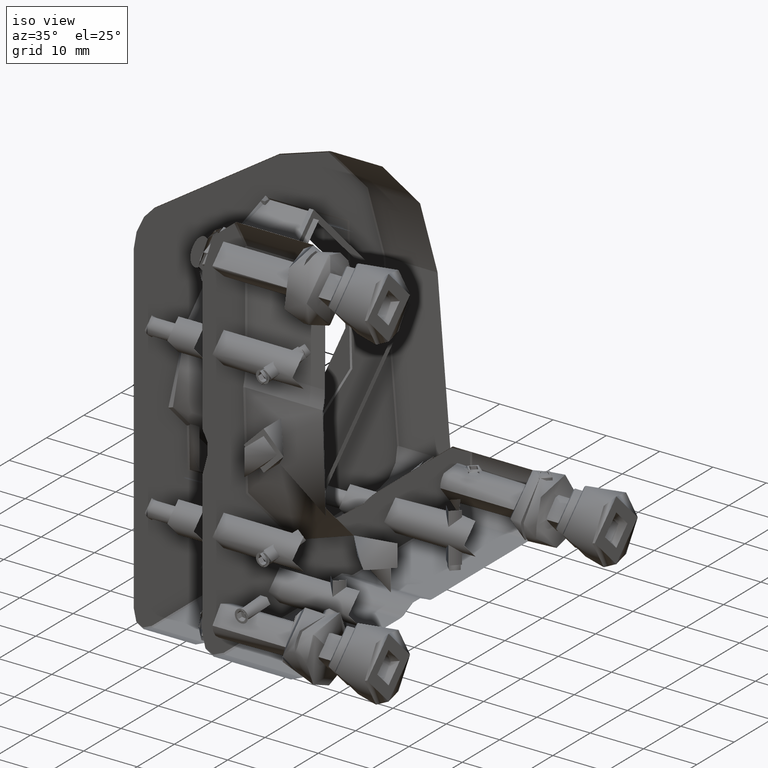
[diagram: clean part render]
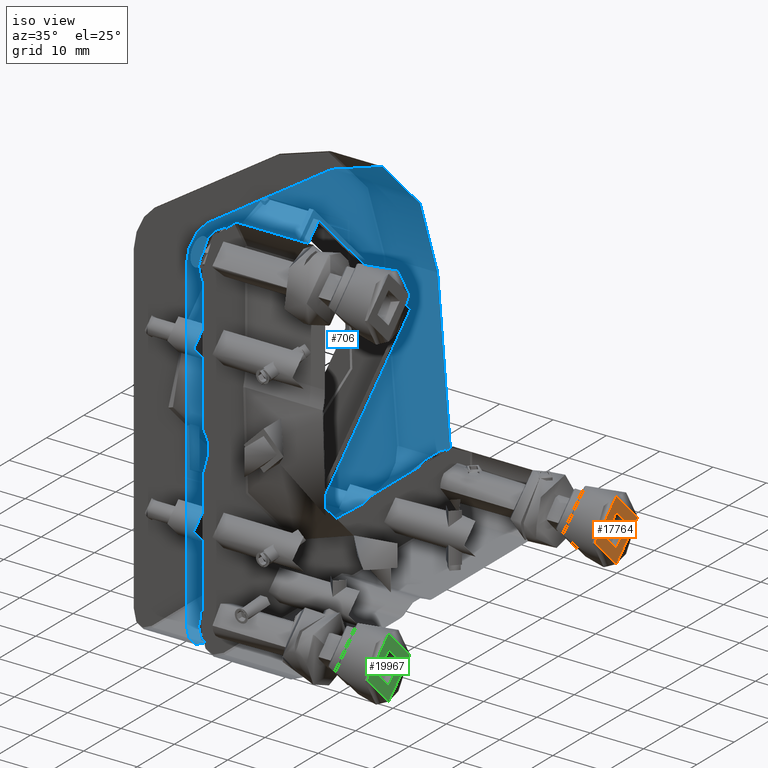
[diagram: same view with three faces highlighted in distinct colors, each labeled with its STEP entity id]
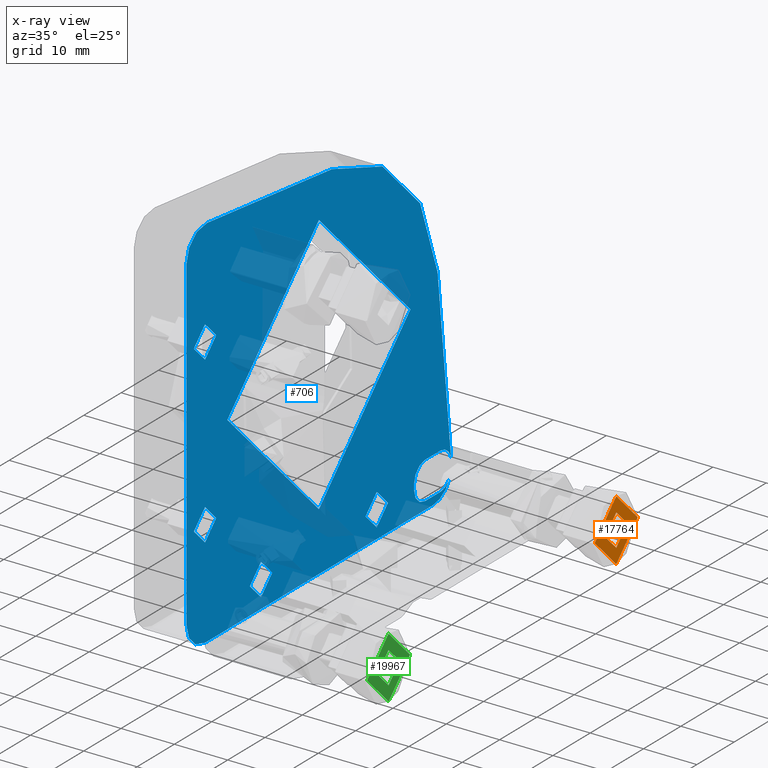
[diagram: x-ray of the same camera — body ghosted, the three highlighted faces saturated]
A machine part, iso view with three faces highlighted in distinct colors.
The next image is the same camera in x-ray (body ghosted, the three faces saturated) — at least one of them is partly hidden behind the body in this view.
Their STEP definitions:

[orange] entity #17764 — the highlighted planar face has unit normal (-1, -0, 0).
#4325 = AXIS2_PLACEMENT_3D ( 'NONE', #16149, #19496, #9667 ) ;
#5531 = FACE_OUTER_BOUND ( 'NONE', #8339, .T. ) ;
#5661 = ORIENTED_EDGE ( 'NONE', *, *, #12207, .F. ) ;
#6388 = CIRCLE ( 'NONE', #16733, 3.000000000013377299 ) ;
#8339 = EDGE_LOOP ( 'NONE', ( #19007 ) ) ;
#9068 = AXIS2_PLACEMENT_3D ( 'NONE', #11904, #18292, #16719 ) ;
#9209 = DIRECTION ( 'NONE',  ( 0.000000000000000000, 0.000000000000000000, -1.000000000000000000 ) ) ;
#9667 = DIRECTION ( 'NONE',  ( 1.206764157183603817E-15, -1.000000000000000000, 0.000000000000000000 ) ) ;
#9931 = EDGE_LOOP ( 'NONE', ( #5661 ) ) ;
#10150 = EDGE_CURVE ( 'NONE', #14119, #14119, #13319, .T. ) ;
#10332 = FACE_BOUND ( 'NONE', #9931, .T. ) ;
#11695 = VERTEX_POINT ( 'NONE', #16512 ) ;
#11904 = CARTESIAN_POINT ( 'NONE',  ( 30.45623492657797016, 29.18292862304677016, 21.50000000000000000 ) ) ;
#12207 = EDGE_CURVE ( 'NONE', #11695, #11695, #6388, .T. ) ;
#13319 = CIRCLE ( 'NONE', #4325, 5.750000000084114937 ) ;
#14119 = VERTEX_POINT ( 'NONE', #19241 ) ;
#15480 = CARTESIAN_POINT ( 'NONE',  ( 30.45623492653248832, 29.18292862304677016, 21.50000000000000000 ) ) ;
#16149 = CARTESIAN_POINT ( 'NONE',  ( 30.45623492653249187, 29.18292862304677371, 21.50000000000000000 ) ) ;
#16512 = CARTESIAN_POINT ( 'NONE',  ( 30.45623492653248832, 29.18292862304677016, 18.49999999998662403 ) ) ;
#16719 = DIRECTION ( 'NONE',  ( 2.921060881242300637E-16, -1.000000000000000000, 0.000000000000000000 ) ) ;
#16733 = AXIS2_PLACEMENT_3D ( 'NONE', #15480, #20084, #9209 ) ;
#17764 = ADVANCED_FACE ( 'NONE', ( #5531, #10332 ), #18602, .F. ) ;
#18292 = DIRECTION ( 'NONE',  ( -1.000000000000000000, -2.921060881242300637E-16, 2.046973701652683154E-16 ) ) ;
#18602 = PLANE ( 'NONE',  #9068 ) ;
#19007 = ORIENTED_EDGE ( 'NONE', *, *, #10150, .F. ) ;
#19241 = CARTESIAN_POINT ( 'NONE',  ( 30.45623492653249897, 23.43292862296265966, 21.50000000000000000 ) ) ;
#19496 = DIRECTION ( 'NONE',  ( -1.000000000000000000, -9.081961124779698324E-16, 1.052944214962372728E-16 ) ) ;
#20084 = DIRECTION ( 'NONE',  ( 1.000000000000000000, -0.000000000000000000, 0.000000000000000000 ) ) ;

[blue] entity #706 — the highlighted planar face has unit normal (-1, 0, 0).
#19 = CARTESIAN_POINT ( 'NONE',  ( -3.975619322914200282, -30.82442902997508938, 19.74187420144115279 ) ) ;
#41 = CARTESIAN_POINT ( 'NONE',  ( -3.975619322914199394, -32.77454530190901494, 80.13649982530291993 ) ) ;
#63 = ORIENTED_EDGE ( 'NONE', *, *, #950, .T. ) ;
#147 = CARTESIAN_POINT ( 'NONE',  ( -3.975619322914200282, -34.36710506261010778, 82.33804233218590696 ) ) ;
#157 = CARTESIAN_POINT ( 'NONE',  ( -3.975619322914199394, -1.317071376953247608, 52.00000000000001421 ) ) ;
#222 = CARTESIAN_POINT ( 'NONE',  ( -3.975619322914199394, 30.49290967648063955, 55.48211220097487484 ) ) ;
#227 = CARTESIAN_POINT ( 'NONE',  ( -3.975619322914200282, -31.28986181036940550, 19.56874895520969559 ) ) ;
#291 = ORIENTED_EDGE ( 'NONE', *, *, #5437, .T. ) ;
#332 = EDGE_CURVE ( 'NONE', #15894, #20489, #14537, .T. ) ;
#342 = CIRCLE ( 'NONE', #1336, 5.000000000000000888 ) ;
#589 = DIRECTION ( 'NONE',  ( -0.000000000000000000, -1.000000000000000000, 0.000000000000000000 ) ) ;
#706 = ADVANCED_FACE ( 'NONE', ( #13417, #16766, #3813, #16868, #5479, #14998, #16567, #8824 ), #15101, .T. ) ;
#803 = CARTESIAN_POINT ( 'NONE',  ( -3.975619322914200282, -33.45763827963047987, 22.65886946835118820 ) ) ;
#808 = CARTESIAN_POINT ( 'NONE',  ( -3.975619322914198506, -30.91618306170578023, 80.11435297104817721 ) ) ;
#840 = B_SPLINE_CURVE_WITH_KNOTS ( 'NONE', 3,
 ( #18564, #10403, #19825, #13849, #15118, #15313, #904, #9047, #13636, #17095, #7361, #803, #5497, #10714, #8842, #13741, #20235, #15218, #7155, #11869, #18360, #20136, #12277, #19925, #4138, #5704, #16684, #5804, #12177, #15424, #16786, #4239, #18672, #18254, #4346, #2781, #5598, #15018 ),
 .UNSPECIFIED., .F., .F.,
 ( 4, 1, 1, 1, 2, 2, 2, 1, 1, 1, 2, 2, 2, 1, 1, 1, 2, 2, 2, 1, 1, 1, 2, 2, 4 ),
 ( 0.000000000000000000, 0.06250000000000618949, 0.09375000000000928424, 0.1093750000000125039, 0.1171875000000138223, 0.1250000000000151545, 0.2500000000000386358, 0.3125000000000498490, 0.3437500000000538458, 0.3593750000000558997, 0.3671875000000555112, 0.3750000000000551226, 0.5000000000000462963, 0.5625000000000419664, 0.5937500000000393019, 0.6093750000000384137, 0.6171875000000371925, 0.6250000000000358602, 0.7500000000000232037, 0.8125000000000168754, 0.8437500000000146549, 0.8593750000000121014, 0.8671875000000108802, 0.8750000000000095479, 1.000000000000000000 ),
 .UNSPECIFIED. ) ;
#904 = CARTESIAN_POINT ( 'NONE',  ( -3.975619322914199394, -32.52364578398503170, 23.37109570898181232 ) ) ;
#950 = EDGE_CURVE ( 'NONE', #3335, #5555, #11613, .T. ) ;
#1044 = CIRCLE ( 'NONE', #17725, 3.000000000000002665 ) ;
#1100 = EDGE_CURVE ( 'NONE', #12466, #8326, #11094, .T. ) ;
#1112 = CARTESIAN_POINT ( 'NONE',  ( -3.975619322914199394, -29.26713874826699069, 82.17608466436740855 ) ) ;
#1157 = CARTESIAN_POINT ( 'NONE',  ( -3.975619322886814189, 31.18292862304676660, 17.99999999999955946 ) ) ;
#1211 = VERTEX_POINT ( 'NONE', #9537 ) ;
#1219 = EDGE_CURVE ( 'NONE', #11313, #5381, #16406, .T. ) ;
#1243 = EDGE_CURVE ( 'NONE', #2385, #5682, #13607, .T. ) ;
#1291 = ORIENTED_EDGE ( 'NONE', *, *, #17188, .T. ) ;
#1318 = CARTESIAN_POINT ( 'NONE',  ( -3.975619322914199394, -29.26703769129635546, 82.66195766781629573 ) ) ;
#1336 = AXIS2_PLACEMENT_3D ( 'NONE', #18718, #4606, #6059 ) ;
#1404 = ORIENTED_EDGE ( 'NONE', *, *, #19068, .T. ) ;
#1511 = CARTESIAN_POINT ( 'NONE',  ( -3.975619322914200282, -33.74457534295112282, 84.17879313774882633 ) ) ;
#1580 = CARTESIAN_POINT ( 'NONE',  ( -3.975619322914199394, -36.81707137695322274, 21.50000000000000000 ) ) ;
#1583 = CIRCLE ( 'NONE', #4909, 3.000000000000901057 ) ;
#1592 = CARTESIAN_POINT ( 'NONE',  ( -3.975619322914200282, -29.96334152861956568, 20.74905311511238182 ) ) ;
#1595 = EDGE_CURVE ( 'NONE', #13172, #13172, #2568, .T. ) ;
#1599 = VECTOR ( 'NONE', #17298, 1000.000000000000000 ) ;
#1697 = CARTESIAN_POINT ( 'NONE',  ( -3.975619322914199394, -29.83456536784859026, 21.81425269692395119 ) ) ;
#1720 = CARTESIAN_POINT ( 'NONE',  ( -3.975619322914199394, -33.49586451469832582, 80.57249603400187254 ) ) ;
#1820 = CARTESIAN_POINT ( 'NONE',  ( -3.975619322914199394, -30.73723791231333990, 84.81092171771460642 ) ) ;
#1902 = CARTESIAN_POINT ( 'NONE',  ( -3.975619322914199394, -29.97040715913649933, 20.73179999930282946 ) ) ;
#1960 = CARTESIAN_POINT ( 'NONE',  ( -3.975619322900506347, 24.18292862304949153, 22.00000000000000711 ) ) ;
#2080 = AXIS2_PLACEMENT_3D ( 'NONE', #19790, #2819, #18607 ) ;
#2105 = CARTESIAN_POINT ( 'NONE',  ( -3.975619322914199394, -31.81707137695323340, 23.50000000000000711 ) ) ;
#2170 = CARTESIAN_POINT ( 'NONE',  ( -3.975619322914199394, -31.81707137695323340, 79.95000000000000284 ) ) ;
#2205 = CARTESIAN_POINT ( 'NONE',  ( -3.975619322914199394, -30.05894557839022241, 22.49264234697042752 ) ) ;
#2273 = CARTESIAN_POINT ( 'NONE',  ( -3.975619322914200282, -29.47972181617375043, 81.48021445982587352 ) ) ;
#2309 = CARTESIAN_POINT ( 'NONE',  ( -3.975619322914199394, -31.01722462457866314, 23.33320560037774882 ) ) ;
#2331 = AXIS2_PLACEMENT_3D ( 'NONE', #20549, #10914, #7465 ) ;
#2340 = AXIS2_PLACEMENT_3D ( 'NONE', #18032, #14788, #18137 ) ;
#2343 = DIRECTION ( 'NONE',  ( 0.000000000000000000, 0.000000000000000000, 1.000000000000000000 ) ) ;
#2369 = CARTESIAN_POINT ( 'NONE',  ( -3.975619322914199394, -31.81707137695323340, 23.50000000000000711 ) ) ;
#2375 = CARTESIAN_POINT ( 'NONE',  ( -3.975619322914199394, -29.57269417786568511, 81.28329510614391040 ) ) ;
#2385 = VERTEX_POINT ( 'NONE', #5274 ) ;
#2424 = EDGE_CURVE ( 'NONE', #8326, #5806, #15110, .T. ) ;
#2498 = EDGE_CURVE ( 'NONE', #15967, #11313, #15104, .T. ) ;
#2568 = CIRCLE ( 'NONE', #12243, 3.000000000000002665 ) ;
#2709 = ORIENTED_EDGE ( 'NONE', *, *, #1243, .T. ) ;
#2781 = CARTESIAN_POINT ( 'NONE',  ( -3.975619322914198506, -32.31697087514267253, 19.54680779929170598 ) ) ;
#2819 = DIRECTION ( 'NONE',  ( 1.000000000000000000, 0.000000000000000000, 0.000000000000000000 ) ) ;
#3093 = CARTESIAN_POINT ( 'NONE',  ( -3.975619322886814189, 31.18292862304676660, 21.00000000000000711 ) ) ;
#3104 = AXIS2_PLACEMENT_3D ( 'NONE', #5584, #13520, #10389 ) ;
#3183 = CARTESIAN_POINT ( 'NONE',  ( -3.975619322914199394, -34.34475034781640090, 82.09924389265243860 ) ) ;
#3199 = ORIENTED_EDGE ( 'NONE', *, *, #332, .T. ) ;
#3262 = CARTESIAN_POINT ( 'NONE',  ( -3.975619322914200282, -31.18489337898517633, 19.60202637501866718 ) ) ;
#3284 = CARTESIAN_POINT ( 'NONE',  ( -3.975619322914200282, -31.97911418336582656, 85.05000000000001137 ) ) ;
#3335 = VERTEX_POINT ( 'NONE', #15235 ) ;
#3377 = CARTESIAN_POINT ( 'NONE',  ( -3.975619322914200282, -29.39712921452097660, 83.30598056108280502 ) ) ;
#3379 = CARTESIAN_POINT ( 'NONE',  ( -3.975619322914198506, -32.14151373404018841, 79.95000000000000284 ) ) ;
#3463 = CARTESIAN_POINT ( 'NONE',  ( -3.975619322914199394, -30.17650447427507743, 20.34113053165442153 ) ) ;
#3480 = CARTESIAN_POINT ( 'NONE',  ( -3.975619322914201170, -32.62311712227380411, 84.91991637185124375 ) ) ;
#3683 = DIRECTION ( 'NONE',  ( 0.000000000000000000, 0.000000000000000000, -1.000000000000000000 ) ) ;
#3813 = FACE_BOUND ( 'NONE', #18501, .T. ) ;
#3837 = VERTEX_POINT ( 'NONE', #11307 ) ;
#3890 = ORIENTED_EDGE ( 'NONE', *, *, #1100, .T. ) ;
#4086 = VERTEX_POINT ( 'NONE', #20397 ) ;
#4138 = CARTESIAN_POINT ( 'NONE',  ( -3.975619322914199394, -33.68817524195780067, 20.79344621021136419 ) ) ;
#4153 = EDGE_LOOP ( 'NONE', ( #15542 ) ) ;
#4219 = VERTEX_POINT ( 'NONE', #1157 ) ;
#4239 = CARTESIAN_POINT ( 'NONE',  ( -3.975619322914197618, -32.66402442694658959, 19.68752855891180786 ) ) ;
#4244 = CARTESIAN_POINT ( 'NONE',  ( -3.975619322900506347, 27.18292862304677016, 17.99999999998631850 ) ) ;
#4346 = CARTESIAN_POINT ( 'NONE',  ( -3.975619322914199394, -32.56802891613537554, 19.64627437278659627 ) ) ;
#4420 = CARTESIAN_POINT ( 'NONE',  ( -3.975619322914199394, -36.81707137695322984, 82.50000000000000000 ) ) ;
#4565 = CARTESIAN_POINT ( 'NONE',  ( -3.975619322914199394, -31.27299134555093474, 87.47030953959902888 ) ) ;
#4566 = ORIENTED_EDGE ( 'NONE', *, *, #2424, .T. ) ;
#4583 = CARTESIAN_POINT ( 'NONE',  ( -3.975619322914199394, 14.18292862304677016, 18.50000000000000355 ) ) ;
#4591 = AXIS2_PLACEMENT_3D ( 'NONE', #16659, #13410, #2343 ) ;
#4606 = DIRECTION ( 'NONE',  ( -1.000000000000000000, 0.000000000000000000, 0.000000000000000000 ) ) ;
#4746 = CARTESIAN_POINT ( 'NONE',  ( -3.975619322914201170, -34.15442093773154397, 83.51978554017843237 ) ) ;
#4841 = CARTESIAN_POINT ( 'NONE',  ( -3.975619322914198506, -29.41742133412124360, 83.36296456765475682 ) ) ;
#4845 = CARTESIAN_POINT ( 'NONE',  ( -3.975619322914198506, -34.20272656415004775, 81.59913230426003850 ) ) ;
#4896 = LINE ( 'NONE', #7729, #11420 ) ;
#4909 = AXIS2_PLACEMENT_3D ( 'NONE', #3093, #6114, #10917 ) ;
#4921 = CARTESIAN_POINT ( 'NONE',  ( -3.975619322914200282, -29.93498956726018534, 22.17681761886219149 ) ) ;
#4975 = CARTESIAN_POINT ( 'NONE',  ( -3.975619322900506347, 31.18292862304677371, 24.99999999999727862 ) ) ;
#5027 = EDGE_CURVE ( 'NONE', #4219, #17913, #1583, .T. ) ;
#5047 = CARTESIAN_POINT ( 'NONE',  ( -3.975619322914199394, -34.36700400563945834, 82.82391533562824293 ) ) ;
#5064 = EDGE_CURVE ( 'NONE', #4086, #4086, #17263, .T. ) ;
#5147 = CARTESIAN_POINT ( 'NONE',  ( -3.975619322914199394, -34.21672141978520898, 81.63703543234622373 ) ) ;
#5227 = CARTESIAN_POINT ( 'NONE',  ( -3.975619322914199394, -31.04887137625543048, 23.34666421781653511 ) ) ;
#5274 = CARTESIAN_POINT ( 'NONE',  ( -3.975619322914199394, -31.81707137695323340, 19.49999999999999645 ) ) ;
#5381 = VERTEX_POINT ( 'NONE', #1960 ) ;
#5403 = CARTESIAN_POINT ( 'NONE',  ( -3.975619322914198506, -29.88956741095283220, 80.82120686226055284 ) ) ;
#5437 = EDGE_CURVE ( 'NONE', #17913, #20220, #14927, .T. ) ;
#5479 = FACE_BOUND ( 'NONE', #9550, .T. ) ;
#5497 = CARTESIAN_POINT ( 'NONE',  ( -3.975619322914198506, -33.57733948112283429, 22.45432093515377403 ) ) ;
#5501 = CARTESIAN_POINT ( 'NONE',  ( -3.975619322914199394, -31.41616627703531961, 79.97237997903634721 ) ) ;
#5555 = VERTEX_POINT ( 'NONE', #18157 ) ;
#5584 = CARTESIAN_POINT ( 'NONE',  ( -3.975619322914199394, -31.81707137695323340, 82.50000000000000000 ) ) ;
#5598 = CARTESIAN_POINT ( 'NONE',  ( -3.975619322914197618, -32.07157440210141175, 19.49999999999998934 ) ) ;
#5666 = EDGE_CURVE ( 'NONE', #5682, #2385, #840, .T. ) ;
#5682 = VERTEX_POINT ( 'NONE', #2369 ) ;
#5704 = CARTESIAN_POINT ( 'NONE',  ( -3.975619322914199394, -33.68298865430074329, 20.77983888886670272 ) ) ;
#5804 = CARTESIAN_POINT ( 'NONE',  ( -3.975619322914198506, -33.42624616917156999, 20.28085267800684122 ) ) ;
#5806 = VERTEX_POINT ( 'NONE', #17061 ) ;
#5905 = CARTESIAN_POINT ( 'NONE',  ( -3.975619322914200282, -30.83762639542185724, 84.85450340363554744 ) ) ;
#5932 = EDGE_LOOP ( 'NONE', ( #20355 ) ) ;
#6035 = VERTEX_POINT ( 'NONE', #8870 ) ;
#6059 = DIRECTION ( 'NONE',  ( 0.000000000000000000, 0.000000000000000000, 1.000000000000000000 ) ) ;
#6076 = EDGE_CURVE ( 'NONE', #20489, #15967, #17611, .T. ) ;
#6114 = DIRECTION ( 'NONE',  ( 1.000000000000000000, 0.000000000000000000, 0.000000000000000000 ) ) ;
#6121 = CARTESIAN_POINT ( 'NONE',  ( -3.975619322914199394, -29.32681883742971607, 81.86250669773335176 ) ) ;
#6179 = CARTESIAN_POINT ( 'NONE',  ( -3.975619322914199394, -29.86394671416922719, 20.99993003309819528 ) ) ;
#6196 = EDGE_LOOP ( 'NONE', ( #63, #1291 ) ) ;
#6300 = CARTESIAN_POINT ( 'NONE',  ( -3.975619322914198506, -33.90884133289068814, 83.97748617421078166 ) ) ;
#6355 = ORIENTED_EDGE ( 'NONE', *, *, #6076, .T. ) ;
#6402 = CARTESIAN_POINT ( 'NONE',  ( -3.975619322914200282, -34.23701353938550085, 81.69401943891892870 ) ) ;
#6504 = CARTESIAN_POINT ( 'NONE',  ( -3.975619322914198506, -29.43141618975641549, 83.40086769574045888 ) ) ;
#6506 = CARTESIAN_POINT ( 'NONE',  ( -3.975619322914201170, -33.29455755115753846, 80.40823004406205143 ) ) ;
#6582 = DIRECTION ( 'NONE',  ( 0.000000000000000000, 0.000000000000000000, -1.000000000000000000 ) ) ;
#6605 = CARTESIAN_POINT ( 'NONE',  ( -3.975619322914199394, -32.48929579933837175, 84.96234508210764602 ) ) ;
#6624 = ORIENTED_EDGE ( 'NONE', *, *, #15278, .T. ) ;
#6957 = CARTESIAN_POINT ( 'NONE',  ( -3.975619322914199394, -30.89887113478424396, 80.12095210812593393 ) ) ;
#7099 = CARTESIAN_POINT ( 'NONE',  ( -3.975619322914199394, -29.95115409960575192, 22.22016111113333281 ) ) ;
#7141 = VERTEX_POINT ( 'NONE', #7143 ) ;
#7143 = CARTESIAN_POINT ( 'NONE',  ( -3.975619322900506347, 24.18292862303289681, 21.00000000000001421 ) ) ;
#7155 = CARTESIAN_POINT ( 'NONE',  ( -3.975619322914199394, -33.81700402399102501, 21.75397602231643290 ) ) ;
#7160 = CARTESIAN_POINT ( 'NONE',  ( -3.975619322914199394, -29.46256797331794886, 81.52055501846973584 ) ) ;
#7321 = ORIENTED_EDGE ( 'NONE', *, *, #16926, .T. ) ;
#7361 = CARTESIAN_POINT ( 'NONE',  ( -3.975619322914199394, -33.32881805951785026, 22.81673294744981817 ) ) ;
#7465 = DIRECTION ( 'NONE',  ( 0.000000000000000000, 0.000000000000000000, -1.000000000000000000 ) ) ;
#7475 = CARTESIAN_POINT ( 'NONE',  ( -3.975619322914199394, -29.57551479586126675, 83.76570178477119555 ) ) ;
#7571 = AXIS2_PLACEMENT_3D ( 'NONE', #19522, #17744, #11463 ) ;
#7591 = ORIENTED_EDGE ( 'NONE', *, *, #1219, .T. ) ;
#7694 = LINE ( 'NONE', #4565, #7743 ) ;
#7709 = CIRCLE ( 'NONE', #20401, 2.999999999999999112 ) ;
#7729 = CARTESIAN_POINT ( 'NONE',  ( -3.975619322914199394, -1.317071376953247608, 18.00000000000001066 ) ) ;
#7743 = VECTOR ( 'NONE', #12599, 1000.000000000000000 ) ;
#7856 = CARTESIAN_POINT ( 'NONE',  ( -3.975619322914201170, -31.09691026582040507, 19.63408272265227694 ) ) ;
#7890 = LINE ( 'NONE', #18877, #1599 ) ;
#7957 = CARTESIAN_POINT ( 'NONE',  ( -3.975619322914199394, -29.81713872991213066, 21.24602397767601758 ) ) ;
#8063 = CARTESIAN_POINT ( 'NONE',  ( -3.975619322914200282, -29.88577613178366121, 22.02709783442946190 ) ) ;
#8075 = CARTESIAN_POINT ( 'NONE',  ( -3.975619322884418327, 34.06806030760564141, 22.82220141251165657 ) ) ;
#8285 = CARTESIAN_POINT ( 'NONE',  ( -3.975619322914200282, -32.21797647684810073, 85.02762002096366700 ) ) ;
#8326 = VERTEX_POINT ( 'NONE', #4420 ) ;
#8366 = DIRECTION ( 'NONE',  ( 1.000000000000000000, 0.000000000000000000, 0.000000000000000000 ) ) ;
#8488 = DIRECTION ( 'NONE',  ( 1.000000000000000000, 0.000000000000000000, 0.000000000000000000 ) ) ;
#8535 = CARTESIAN_POINT ( 'NONE',  ( -3.975619322914200282, -30.26271243287697743, 80.44821939940187860 ) ) ;
#8560 = DIRECTION ( 'NONE',  ( 0.000000000000000000, 0.000000000000000000, -1.000000000000000000 ) ) ;
#8824 = FACE_OUTER_BOUND ( 'NONE', #9234, .T. ) ;
#8842 = CARTESIAN_POINT ( 'NONE',  ( -3.975619322914199394, -33.65027697733114564, 22.29984675237482250 ) ) ;
#8870 = CARTESIAN_POINT ( 'NONE',  ( -3.975619322914199394, -31.81707137695324761, 64.50000000000004263 ) ) ;
#8985 = CARTESIAN_POINT ( 'NONE',  ( -3.975619322886814189, 31.18292862304676660, 22.00000000000000711 ) ) ;
#9047 = CARTESIAN_POINT ( 'NONE',  ( -3.975619322914199394, -32.53723248808682911, 23.36591727734733581 ) ) ;
#9095 = DIRECTION ( 'NONE',  ( 1.000000000000000000, 0.000000000000000000, 0.000000000000000000 ) ) ;
#9160 = CARTESIAN_POINT ( 'NONE',  ( -3.975619322914201170, -29.28939240609005168, 82.90075610735138412 ) ) ;
#9234 = EDGE_LOOP ( 'NONE', ( #3199, #6355, #12191, #7591, #10930, #9504, #1404, #12777, #291, #15492, #6624, #3890, #4566, #19199, #13866 ) ) ;
#9343 = ORIENTED_EDGE ( 'NONE', *, *, #5064, .T. ) ;
#9504 = ORIENTED_EDGE ( 'NONE', *, *, #9921, .T. ) ;
#9534 = EDGE_LOOP ( 'NONE', ( #9343 ) ) ;
#9537 = CARTESIAN_POINT ( 'NONE',  ( -3.975619322914199394, 2.165040824021612131, 83.80998105343388715 ) ) ;
#9550 = EDGE_LOOP ( 'NONE', ( #7321 ) ) ;
#9556 = CARTESIAN_POINT ( 'NONE',  ( -3.975619322914198506, -34.27946067148548792, 81.82788732202529047 ) ) ;
#9599 = ORIENTED_EDGE ( 'NONE', *, *, #5666, .T. ) ;
#9633 = CARTESIAN_POINT ( 'NONE',  ( -3.975619322914198506, -29.81703770047377589, 21.62698801116199121 ) ) ;
#9656 = CARTESIAN_POINT ( 'NONE',  ( -3.975619322914199394, -32.71795969219749622, 84.88564702895180858 ) ) ;
#9734 = DIRECTION ( 'NONE',  ( 0.000000000000000000, 0.000000000000000000, -1.000000000000000000 ) ) ;
#9921 = EDGE_CURVE ( 'NONE', #7141, #17237, #11333, .T. ) ;
#9962 = EDGE_CURVE ( 'NONE', #20220, #3837, #12378, .T. ) ;
#10034 = CARTESIAN_POINT ( 'NONE',  ( -3.975619322914199394, -30.20789658473246675, 22.71914732199073228 ) ) ;
#10100 = CARTESIAN_POINT ( 'NONE',  ( -3.975619322914199394, -30.95406756572067763, 80.10036548415050106 ) ) ;
#10389 = DIRECTION ( 'NONE',  ( 0.000000000000000000, 0.000000000000000000, 1.000000000000000000 ) ) ;
#10403 = CARTESIAN_POINT ( 'NONE',  ( -3.975619322914200282, -31.94414451737355520, 23.50000000000000711 ) ) ;
#10482 = CARTESIAN_POINT ( 'NONE',  ( -3.975619322914199394, 29.18292862304677016, 16.50000000000000000 ) ) ;
#10615 = CARTESIAN_POINT ( 'NONE',  ( -3.975619322914201170, -30.85959745199664539, 84.86350017469709428 ) ) ;
#10714 = CARTESIAN_POINT ( 'NONE',  ( -3.975619322914200282, -33.62954281804259438, 22.34695304999284815 ) ) ;
#10914 = DIRECTION ( 'NONE',  ( 1.000000000000000000, 0.000000000000000000, 0.000000000000000000 ) ) ;
#10917 = DIRECTION ( 'NONE',  ( 0.000000000000000000, 0.000000000000000000, -1.000000000000000000 ) ) ;
#10930 = ORIENTED_EDGE ( 'NONE', *, *, #13452, .F. ) ;
#11094 = LINE ( 'NONE', #14233, #13012 ) ;
#11113 = CARTESIAN_POINT ( 'NONE',  ( -3.975619322914199394, -16.81707137695326182, 21.50000000000000000 ) ) ;
#11116 = CARTESIAN_POINT ( 'NONE',  ( -3.975619322914199394, -33.08277316171520255, 84.74155658109890510 ) ) ;
#11212 = CARTESIAN_POINT ( 'NONE',  ( -3.975619322914200282, -29.35468208242096466, 83.17211267797758012 ) ) ;
#11215 = CARTESIAN_POINT ( 'NONE',  ( -3.975619322914200282, -33.37143032103453777, 84.55178060057954781 ) ) ;
#11295 = CARTESIAN_POINT ( 'NONE',  ( -3.975619322914199394, -29.94596751194906759, 22.20655378978954531 ) ) ;
#11307 = CARTESIAN_POINT ( 'NONE',  ( -3.975619322914199394, -31.81707137695322274, 16.50000000000000000 ) ) ;
#11313 = VERTEX_POINT ( 'NONE', #11892 ) ;
#11333 = CIRCLE ( 'NONE', #2331, 3.000000000027748026 ) ;
#11399 = DIRECTION ( 'NONE',  ( 1.000000000000000000, 0.000000000000000000, 0.000000000000000000 ) ) ;
#11419 = CARTESIAN_POINT ( 'NONE',  ( -3.975619322914200282, -32.79651635848484403, 80.14549659636529100 ) ) ;
#11420 = VECTOR ( 'NONE', #12425, 1000.000000000000000 ) ;
#11463 = DIRECTION ( 'NONE',  ( 0.000000000000000000, 0.000000000000000000, 1.000000000000000000 ) ) ;
#11503 = CARTESIAN_POINT ( 'NONE',  ( -3.975619322914200282, -30.86275044180016636, 23.26026810416917456 ) ) ;
#11610 = CARTESIAN_POINT ( 'NONE',  ( -3.975619322914199394, -31.81707137695326182, 33.50000000000000711 ) ) ;
#11613 = B_SPLINE_CURVE_WITH_KNOTS ( 'NONE', 3,
 ( #15839, #3284, #8285, #6605, #3480, #17702, #9656, #19064, #11116, #11215, #1511, #6300, #19482, #12987, #4746, #17492, #13085, #12678, #5047, #147, #3183, #9556, #6402, #5147, #4845, #14359, #19172, #15938, #1720, #6506, #17594, #16240, #19272, #11419, #41, #12785, #3379, #12884 ),
 .UNSPECIFIED., .F., .F.,
 ( 4, 1, 1, 1, 2, 2, 2, 1, 1, 1, 2, 2, 2, 1, 1, 1, 2, 2, 2, 1, 1, 1, 2, 2, 4 ),
 ( 0.000000000000000000, 0.06250000000001518230, 0.09375000000002410572, 0.1093750000000280331, 0.1171875000000299899, 0.1250000000000319467, 0.2500000000000709433, 0.3125000000000913714, 0.3437500000000994205, 0.3593750000001040834, 0.3671875000001041389, 0.3750000000001041944, 0.5000000000001199041, 0.5625000000001252332, 0.5937500000001275646, 0.6093750000001286748, 0.6171875000001266764, 0.6250000000001246780, 0.7500000000000749401, 0.8125000000000491829, 0.8437500000000373035, 0.8593750000000313083, 0.8671875000000284217, 0.8750000000000255351, 1.000000000000000000 ),
 .UNSPECIFIED. ) ;
#11747 = CIRCLE ( 'NONE', #2080, 2.999999999999999112 ) ;
#11773 = CARTESIAN_POINT ( 'NONE',  ( -3.975619322914200282, -29.72530142101136974, 81.02251382580558925 ) ) ;
#11869 = CARTESIAN_POINT ( 'NONE',  ( -3.975619322914199394, -33.81710505343433226, 21.37301198884178532 ) ) ;
#11892 = CARTESIAN_POINT ( 'NONE',  ( -3.975619322886814189, 27.18292862304677016, 24.99999999999727862 ) ) ;
#11908 = CARTESIAN_POINT ( 'NONE',  ( -3.975619322914200282, -31.31717187876723685, 23.45319220070829758 ) ) ;
#12120 = DIRECTION ( 'NONE',  ( 0.000000000000000000, 0.000000000000000000, -1.000000000000000000 ) ) ;
#12121 = VECTOR ( 'NONE', #12958, 1000.000000000000227 ) ;
#12177 = CARTESIAN_POINT ( 'NONE',  ( -3.975619322914200282, -33.13380432440372658, 19.98825331743694633 ) ) ;
#12179 = EDGE_CURVE ( 'NONE', #1211, #15894, #19082, .T. ) ;
#12191 = ORIENTED_EDGE ( 'NONE', *, *, #2498, .T. ) ;
#12243 = AXIS2_PLACEMENT_3D ( 'NONE', #16217, #8366, #6582 ) ;
#12277 = CARTESIAN_POINT ( 'NONE',  ( -3.975619322914199394, -33.71507078549043257, 20.86788717912490299 ) ) ;
#12378 = LINE ( 'NONE', #15849, #16345 ) ;
#12412 = CARTESIAN_POINT ( 'NONE',  ( -3.975619322914199394, -16.81707137695326182, 18.50000000000000355 ) ) ;
#12425 = DIRECTION ( 'NONE',  ( 0.000000000000000000, 1.000000000000000000, -0.000000000000000000 ) ) ;
#12466 = VERTEX_POINT ( 'NONE', #1580 ) ;
#12552 = DIRECTION ( 'NONE',  ( 0.000000000000000000, 0.000000000000000000, 1.000000000000000000 ) ) ;
#12599 = DIRECTION ( 'NONE',  ( 0.000000000000000000, 0.9940619079198086405, -0.1088160062804637840 ) ) ;
#12656 = CARTESIAN_POINT ( 'NONE',  ( -3.975619322914199394, -30.05680327278292552, 20.54567906485039686 ) ) ;
#12678 = CARTESIAN_POINT ( 'NONE',  ( -3.975619322914199394, -34.30732391647674717, 83.13749330226112022 ) ) ;
#12736 = AXIS2_PLACEMENT_3D ( 'NONE', #157, #14573, #15172 ) ;
#12763 = CARTESIAN_POINT ( 'NONE',  ( -3.975619322886814189, 27.18292862304677016, 22.00000000000000711 ) ) ;
#12777 = ORIENTED_EDGE ( 'NONE', *, *, #5027, .T. ) ;
#12780 = CARTESIAN_POINT ( 'NONE',  ( -3.975619322914200282, -30.79728583677695397, 84.83734956077994127 ) ) ;
#12785 = CARTESIAN_POINT ( 'NONE',  ( -3.975619322914198506, -32.45439423716778293, 80.00967994409694484 ) ) ;
#12865 = CARTESIAN_POINT ( 'NONE',  ( -3.975619322914200282, -31.11049696992091995, 19.62890429101819834 ) ) ;
#12884 = CARTESIAN_POINT ( 'NONE',  ( -3.975619322914199394, -31.81707137695323340, 79.95000000000000284 ) ) ;
#12958 = DIRECTION ( 'NONE',  ( 0.000000000000000000, 0.1088160062804643669, -0.9940619079198085295 ) ) ;
#12987 = CARTESIAN_POINT ( 'NONE',  ( -3.975619322914199394, -34.12799309466516462, 83.57983346464345686 ) ) ;
#13012 = VECTOR ( 'NONE', #12552, 1000.000000000000000 ) ;
#13085 = CARTESIAN_POINT ( 'NONE',  ( -3.975619322914201170, -34.18057577142402437, 83.45746327232788531 ) ) ;
#13172 = VERTEX_POINT ( 'NONE', #11610 ) ;
#13370 = CARTESIAN_POINT ( 'NONE',  ( -3.975619322914199394, -30.65820190860302930, 23.14056690267663541 ) ) ;
#13410 = DIRECTION ( 'NONE',  ( 1.000000000000000000, 0.000000000000000000, 0.000000000000000000 ) ) ;
#13417 = FACE_BOUND ( 'NONE', #9534, .T. ) ;
#13452 = EDGE_CURVE ( 'NONE', #7141, #5381, #7890, .T. ) ;
#13520 = DIRECTION ( 'NONE',  ( -1.000000000000000000, 0.000000000000000000, 0.000000000000000000 ) ) ;
#13539 = CARTESIAN_POINT ( 'NONE',  ( -3.975619322914200282, -29.45356698248244243, 81.54253672767246997 ) ) ;
#13607 = B_SPLINE_CURVE_WITH_KNOTS ( 'NONE', 3,
 ( #16117, #17575, #14542, #227, #3262, #14642, #12865, #7856, #19, #17787, #17472, #3463, #12656, #16219, #15916, #1902, #1592, #6179, #7957, #9633, #1697, #8063, #14441, #4921, #11295, #7099, #2205, #10034, #16427, #13370, #11503, #19561, #2309, #5227, #16524, #11908, #16624, #2105 ),
 .UNSPECIFIED., .F., .F.,
 ( 4, 1, 1, 1, 2, 2, 2, 1, 1, 1, 2, 2, 2, 1, 1, 1, 2, 2, 2, 1, 1, 1, 2, 2, 4 ),
 ( 0.000000000000000000, 0.06250000000000727196, 0.09375000000001107447, 0.1093750000000129757, 0.1171875000000142109, 0.1250000000000154321, 0.2500000000000309752, 0.3125000000000387468, 0.3437500000000415779, 0.3593750000000429101, 0.3671875000000436318, 0.3750000000000442979, 0.5000000000000465183, 0.5625000000000484057, 0.5937500000000494049, 0.6093750000000497380, 0.6171875000000490719, 0.6250000000000484057, 0.7500000000000270894, 0.8125000000000158762, 0.8437500000000101030, 0.8593750000000072164, 0.8671875000000061062, 0.8750000000000049960, 1.000000000000000000 ),
 .UNSPECIFIED. ) ;
#13636 = CARTESIAN_POINT ( 'NONE',  ( -3.975619322914199394, -32.80971372391948648, 23.25812579856543039 ) ) ;
#13640 = CARTESIAN_POINT ( 'NONE',  ( -3.975619322914199394, -31.14484695455078267, 80.03765491789236819 ) ) ;
#13741 = CARTESIAN_POINT ( 'NONE',  ( -3.975619322914199394, -33.66373559476983957, 22.26820000069793792 ) ) ;
#13841 = DIRECTION ( 'NONE',  ( -0.000000000000000000, -1.000000000000000000, 0.000000000000000000 ) ) ;
#13849 = CARTESIAN_POINT ( 'NONE',  ( -3.975619322914199394, -32.34428094353424399, 23.43125104479030085 ) ) ;
#13854 = CARTESIAN_POINT ( 'NONE',  ( -3.975619322914199394, -29.76529077636447695, 84.05435894407436592 ) ) ;
#13866 = ORIENTED_EDGE ( 'NONE', *, *, #12179, .T. ) ;
#13954 = CARTESIAN_POINT ( 'NONE',  ( -3.975619322914200282, -31.49262901987943408, 85.05000000000001137 ) ) ;
#14109 = VECTOR ( 'NONE', #589, 1000.000000000000000 ) ;
#14233 = CARTESIAN_POINT ( 'NONE',  ( -3.975619322914199394, -36.81707137695322274, 52.00000000000001421 ) ) ;
#14359 = CARTESIAN_POINT ( 'NONE',  ( -3.975619322914200282, -34.19611926882599562, 81.58179975782928750 ) ) ;
#14441 = CARTESIAN_POINT ( 'NONE',  ( -3.975619322914200282, -29.91907196841729899, 22.13211282087800669 ) ) ;
#14460 = CARTESIAN_POINT ( 'NONE',  ( -3.975619322914199394, -30.33958520275061232, 84.59176995594360449 ) ) ;
#14537 = LINE ( 'NONE', #222, #12121 ) ;
#14542 = CARTESIAN_POINT ( 'NONE',  ( -3.975619322914198506, -31.50266970382342890, 19.51755292473438885 ) ) ;
#14573 = DIRECTION ( 'NONE',  ( -1.000000000000000000, -0.000000000000000000, -0.000000000000000000 ) ) ;
#14642 = CARTESIAN_POINT ( 'NONE',  ( -3.975619322914200282, -31.14021451882255320, 19.61793371305920886 ) ) ;
#14788 = DIRECTION ( 'NONE',  ( -1.000000000000000000, 0.000000000000000000, 0.000000000000000000 ) ) ;
#14903 = B_SPLINE_CURVE_WITH_KNOTS ( 'NONE', 3,
 ( #2170, #18057, #5501, #13640, #19727, #10100, #808, #6957, #20038, #8535, #5403, #11773, #2375, #16589, #2273, #7160, #13539, #6121, #1112, #1318, #9160, #11212, #3377, #4841, #6504, #20241, #7475, #13854, #15536, #14460, #18779, #1820, #12780, #5905, #10615, #16135, #13954, #19168 ),
 .UNSPECIFIED., .F., .F.,
 ( 4, 1, 1, 1, 2, 2, 2, 1, 1, 1, 2, 2, 2, 1, 1, 1, 2, 2, 2, 1, 1, 1, 2, 2, 4 ),
 ( 0.000000000000000000, 0.06249999999998352707, 0.09374999999997396527, 0.1093749999999699268, 0.1171874999999679007, 0.1249999999999658884, 0.2499999999999297229, 0.3124999999999116262, 0.3437499999999022449, 0.3593749999998973044, 0.3671874999998948064, 0.3749999999998923084, 0.4999999999998897549, 0.5624999999998911981, 0.5937499999998891997, 0.6093749999998884226, 0.6171874999998908651, 0.6249999999998931965, 0.7499999999999269473, 0.8124999999999455991, 0.8437499999999543698, 0.8593749999999593658, 0.8671874999999618083, 0.8749999999999643618, 1.000000000000000000 ),
 .UNSPECIFIED. ) ;
#14927 = CIRCLE ( 'NONE', #7571, 5.000000000000000888 ) ;
#14998 = FACE_BOUND ( 'NONE', #16900, .T. ) ;
#15018 = CARTESIAN_POINT ( 'NONE',  ( -3.975619322914199394, -31.81707137695323340, 19.49999999999999645 ) ) ;
#15101 = PLANE ( 'NONE',  #2340 ) ;
#15104 = LINE ( 'NONE', #16369, #14109 ) ;
#15110 = CIRCLE ( 'NONE', #3104, 5.000000000000004441 ) ;
#15118 = CARTESIAN_POINT ( 'NONE',  ( -3.975619322914200282, -32.44924937491963846, 23.39797362498136124 ) ) ;
#15172 = DIRECTION ( 'NONE',  ( 0.000000000000000000, 0.000000000000000000, 1.000000000000000000 ) ) ;
#15218 = CARTESIAN_POINT ( 'NONE',  ( -3.975619322914199394, -33.77019603973391071, 22.00006996690676075 ) ) ;
#15235 = CARTESIAN_POINT ( 'NONE',  ( -3.975619322914199394, -31.81707137695323340, 85.04999999999999716 ) ) ;
#15246 = CARTESIAN_POINT ( 'NONE',  ( -3.975619322914199394, -31.81707137695324761, 67.50000000000004263 ) ) ;
#15278 = EDGE_CURVE ( 'NONE', #3837, #12466, #342, .T. ) ;
#15313 = CARTESIAN_POINT ( 'NONE',  ( -3.975619322914199394, -32.49392823508293304, 23.38206628694081246 ) ) ;
#15424 = CARTESIAN_POINT ( 'NONE',  ( -3.975619322914199394, -32.97594084530558689, 19.85943309732548201 ) ) ;
#15492 = ORIENTED_EDGE ( 'NONE', *, *, #9962, .T. ) ;
#15536 = CARTESIAN_POINT ( 'NONE',  ( -3.975619322914199394, -30.13827823920908600, 84.42750396600142437 ) ) ;
#15542 = ORIENTED_EDGE ( 'NONE', *, *, #1595, .T. ) ;
#15839 = CARTESIAN_POINT ( 'NONE',  ( -3.975619322914199394, -31.81707137695323340, 85.04999999999999716 ) ) ;
#15849 = CARTESIAN_POINT ( 'NONE',  ( -3.975619322914199394, -1.317071376953247608, 16.50000000000000000 ) ) ;
#15894 = VERTEX_POINT ( 'NONE', #18919 ) ;
#15916 = CARTESIAN_POINT ( 'NONE',  ( -3.975619322914199394, -29.98386577657509022, 20.70015324762664832 ) ) ;
#15938 = CARTESIAN_POINT ( 'NONE',  ( -3.975619322914200282, -33.86885197754012466, 80.94564105591928183 ) ) ;
#15967 = VERTEX_POINT ( 'NONE', #4975 ) ;
#16117 = CARTESIAN_POINT ( 'NONE',  ( -3.975619322914199394, -31.81707137695323340, 19.49999999999999645 ) ) ;
#16135 = CARTESIAN_POINT ( 'NONE',  ( -3.975619322914199394, -31.17974851675182890, 84.99032005590306937 ) ) ;
#16217 = CARTESIAN_POINT ( 'NONE',  ( -3.975619322914199394, -31.81707137695326182, 36.50000000000001421 ) ) ;
#16219 = CARTESIAN_POINT ( 'NONE',  ( -3.975619322914198506, -30.00459993586345675, 20.65304695000959967 ) ) ;
#16240 = CARTESIAN_POINT ( 'NONE',  ( -3.975619322914198506, -32.89690484159383743, 80.18907828228780943 ) ) ;
#16345 = VECTOR ( 'NONE', #13841, 1000.000000000000000 ) ;
#16369 = CARTESIAN_POINT ( 'NONE',  ( -3.975619322914199394, -1.317071376953247608, 25.00000000000000000 ) ) ;
#16406 = CIRCLE ( 'NONE', #17069, 2.999999999994548805 ) ;
#16427 = CARTESIAN_POINT ( 'NONE',  ( -3.975619322914199394, -30.50033842950397656, 23.01174668256428646 ) ) ;
#16524 = CARTESIAN_POINT ( 'NONE',  ( -3.975619322914199394, -31.06611383777088875, 23.35372562721340728 ) ) ;
#16567 = FACE_BOUND ( 'NONE', #6196, .T. ) ;
#16589 = CARTESIAN_POINT ( 'NONE',  ( -3.975619322914199394, -29.50614965923936239, 81.42016653536371962 ) ) ;
#16602 = EDGE_CURVE ( 'NONE', #18493, #18493, #7709, .T. ) ;
#16624 = CARTESIAN_POINT ( 'NONE',  ( -3.975619322914198506, -31.56256835180846210, 23.50000000000000355 ) ) ;
#16659 = CARTESIAN_POINT ( 'NONE',  ( -3.975619322914199394, -1.317071376953247608, 52.00000000000001421 ) ) ;
#16684 = CARTESIAN_POINT ( 'NONE',  ( -3.975619322914198506, -33.57519717551563332, 20.50735765302895786 ) ) ;
#16766 = FACE_BOUND ( 'NONE', #5932, .T. ) ;
#16786 = CARTESIAN_POINT ( 'NONE',  ( -3.975619322914199394, -32.77139231210790626, 19.73973189583243837 ) ) ;
#16868 = FACE_BOUND ( 'NONE', #4153, .T. ) ;
#16900 = EDGE_LOOP ( 'NONE', ( #9599, #2709 ) ) ;
#16926 = EDGE_CURVE ( 'NONE', #6035, #6035, #1044, .T. ) ;
#17061 = CARTESIAN_POINT ( 'NONE',  ( -3.975619322914199394, -31.27299134555093474, 87.47030953959902888 ) ) ;
#17069 = AXIS2_PLACEMENT_3D ( 'NONE', #12763, #11399, #9734 ) ;
#17095 = CARTESIAN_POINT ( 'NONE',  ( -3.975619322914201170, -33.03621869894331553, 23.10917479221968662 ) ) ;
#17188 = EDGE_CURVE ( 'NONE', #5555, #3335, #14903, .T. ) ;
#17237 = VERTEX_POINT ( 'NONE', #4244 ) ;
#17263 = CIRCLE ( 'NONE', #4591, 24.52499999999999858 ) ;
#17298 = DIRECTION ( 'NONE',  ( 0.000000000000000000, 0.000000000000000000, 1.000000000000000000 ) ) ;
#17472 = CARTESIAN_POINT ( 'NONE',  ( -3.975619322914198506, -30.30532469438808363, 20.18326705255338638 ) ) ;
#17492 = CARTESIAN_POINT ( 'NONE',  ( -3.975619322914199394, -34.17157478058790332, 83.47944498153250947 ) ) ;
#17575 = CARTESIAN_POINT ( 'NONE',  ( -3.975619322914201170, -31.68999823653076575, 19.50000000000000355 ) ) ;
#17594 = CARTESIAN_POINT ( 'NONE',  ( -3.975619322914199394, -33.03377627081672330, 80.25562280091538980 ) ) ;
#17611 = CIRCLE ( 'NONE', #20287, 2.999999999994548805 ) ;
#17702 = CARTESIAN_POINT ( 'NONE',  ( -3.975619322914199394, -32.68007518817972823, 84.89963451584949894 ) ) ;
#17725 = AXIS2_PLACEMENT_3D ( 'NONE', #15246, #18386, #8560 ) ;
#17744 = DIRECTION ( 'NONE',  ( -1.000000000000000000, 0.000000000000000000, 0.000000000000000000 ) ) ;
#17787 = CARTESIAN_POINT ( 'NONE',  ( -3.975619322914200282, -30.59792405496423484, 19.89082520777395047 ) ) ;
#17913 = VERTEX_POINT ( 'NONE', #20172 ) ;
#18032 = CARTESIAN_POINT ( 'NONE',  ( -3.975619322914199394, -1.317071376953247608, 52.00000000000001421 ) ) ;
#18057 = CARTESIAN_POINT ( 'NONE',  ( -3.975619322914199394, -31.65502857052748809, 79.95000000000001705 ) ) ;
#18137 = DIRECTION ( 'NONE',  ( 0.000000000000000000, 0.000000000000000000, 1.000000000000000000 ) ) ;
#18157 = CARTESIAN_POINT ( 'NONE',  ( -3.975619322914199394, -31.81707137695323340, 79.95000000000000284 ) ) ;
#18254 = CARTESIAN_POINT ( 'NONE',  ( -3.975619322914199394, -32.58527137765133119, 19.65333578218376331 ) ) ;
#18329 = EDGE_CURVE ( 'NONE', #5806, #1211, #7694, .T. ) ;
#18360 = CARTESIAN_POINT ( 'NONE',  ( -3.975619322914199394, -33.79957738606077555, 21.18574730308265686 ) ) ;
#18386 = DIRECTION ( 'NONE',  ( 1.000000000000000000, 0.000000000000000000, 0.000000000000000000 ) ) ;
#18493 = VERTEX_POINT ( 'NONE', #12412 ) ;
#18501 = EDGE_LOOP ( 'NONE', ( #18862 ) ) ;
#18564 = CARTESIAN_POINT ( 'NONE',  ( -3.975619322914199394, -31.81707137695323340, 23.50000000000000711 ) ) ;
#18607 = DIRECTION ( 'NONE',  ( 0.000000000000000000, 0.000000000000000000, -1.000000000000000000 ) ) ;
#18672 = CARTESIAN_POINT ( 'NONE',  ( -3.975619322914201170, -32.61691812932837564, 19.66679439962281961 ) ) ;
#18718 = CARTESIAN_POINT ( 'NONE',  ( -3.975619322914199394, -31.81707137695322274, 21.50000000000000000 ) ) ;
#18779 = CARTESIAN_POINT ( 'NONE',  ( -3.975619322914199394, -30.60036648309099405, 84.74437719908884503 ) ) ;
#18845 = EDGE_CURVE ( 'NONE', #20263, #20263, #11747, .T. ) ;
#18862 = ORIENTED_EDGE ( 'NONE', *, *, #16602, .T. ) ;
#18877 = CARTESIAN_POINT ( 'NONE',  ( -3.975619322914199394, 24.18292862304676660, 22.00000000000000711 ) ) ;
#18919 = CARTESIAN_POINT ( 'NONE',  ( -3.975619322914199394, 30.49290967648064310, 55.48211220097487484 ) ) ;
#19064 = CARTESIAN_POINT ( 'NONE',  ( -3.975619322914198506, -32.73527161912481631, 84.87904789187233234 ) ) ;
#19068 = EDGE_CURVE ( 'NONE', #17237, #4219, #4896, .T. ) ;
#19082 = CIRCLE ( 'NONE', #12736, 32.00000000000000711 ) ;
#19168 = CARTESIAN_POINT ( 'NONE',  ( -3.975619322914199394, -31.81707137695323340, 85.04999999999999716 ) ) ;
#19172 = CARTESIAN_POINT ( 'NONE',  ( -3.975619322914200282, -34.05862795804532794, 81.23429821522442751 ) ) ;
#19199 = ORIENTED_EDGE ( 'NONE', *, *, #18329, .T. ) ;
#19272 = CARTESIAN_POINT ( 'NONE',  ( -3.975619322914200282, -32.83685691712994981, 80.16265043922155087 ) ) ;
#19482 = CARTESIAN_POINT ( 'NONE',  ( -3.975619322914200282, -34.06144857603747766, 83.71670489386831093 ) ) ;
#19522 = CARTESIAN_POINT ( 'NONE',  ( -3.975619322914199394, 29.18292862304677016, 21.50000000000000000 ) ) ;
#19561 = CARTESIAN_POINT ( 'NONE',  ( -3.975619322914199394, -30.97011832696081512, 23.31247144108911939 ) ) ;
#19727 = CARTESIAN_POINT ( 'NONE',  ( -3.975619322914200282, -31.01102563162260495, 80.08008362814881309 ) ) ;
#19790 = CARTESIAN_POINT ( 'NONE',  ( -3.975619322914199394, 14.18292862304677016, 21.50000000000000000 ) ) ;
#19825 = CARTESIAN_POINT ( 'NONE',  ( -3.975619322914200282, -32.13147305007928622, 23.48244707526562181 ) ) ;
#19925 = CARTESIAN_POINT ( 'NONE',  ( -3.975619322914199394, -33.69915318664704529, 20.82318238113954934 ) ) ;
#20038 = CARTESIAN_POINT ( 'NONE',  ( -3.975619322914199394, -30.55136959214997461, 80.25844341892877765 ) ) ;
#20136 = CARTESIAN_POINT ( 'NONE',  ( -3.975619322914199394, -33.74836662212499050, 20.97290216557550124 ) ) ;
#20172 = CARTESIAN_POINT ( 'NONE',  ( -3.975619322868512828, 33.72028708137325026, 19.39943383330751558 ) ) ;
#20220 = VERTEX_POINT ( 'NONE', #10482 ) ;
#20235 = CARTESIAN_POINT ( 'NONE',  ( -3.975619322914199394, -33.67080122528710717, 22.25094688488730554 ) ) ;
#20241 = CARTESIAN_POINT ( 'NONE',  ( -3.975619322914199394, -29.43802348508046762, 83.41820024217099672 ) ) ;
#20263 = VERTEX_POINT ( 'NONE', #4583 ) ;
#20287 = AXIS2_PLACEMENT_3D ( 'NONE', #8985, #9095, #12120 ) ;
#20355 = ORIENTED_EDGE ( 'NONE', *, *, #18845, .T. ) ;
#20397 = CARTESIAN_POINT ( 'NONE',  ( -3.975619322914199394, -1.317071376953247608, 76.52500000000000568 ) ) ;
#20401 = AXIS2_PLACEMENT_3D ( 'NONE', #11113, #8488, #3683 ) ;
#20489 = VERTEX_POINT ( 'NONE', #8075 ) ;
#20549 = CARTESIAN_POINT ( 'NONE',  ( -3.975619322886814189, 27.18292862304677016, 21.00000000000000711 ) ) ;

[green] entity #19967 — the highlighted planar face has unit normal (-1, -0, 0).
#832 = CARTESIAN_POINT ( 'NONE',  ( 30.45623492664864429, -37.56707137696655963, 21.50000000000000000 ) ) ;
#953 = EDGE_CURVE ( 'NONE', #19470, #19470, #12015, .T. ) ;
#1920 = DIRECTION ( 'NONE',  ( 1.000000000000000000, 2.062841329432838164E-15, 3.023285266388526076E-16 ) ) ;
#2172 = DIRECTION ( 'NONE',  ( 1.206764157198459843E-15, -1.000000000000000000, 0.000000000000000000 ) ) ;
#2342 = CARTESIAN_POINT ( 'NONE',  ( 30.45623492657807319, -31.81707137695322629, 21.50000000000000000 ) ) ;
#4943 = DIRECTION ( 'NONE',  ( -2.312964634644198856E-15, 1.000000000000000000, 0.000000000000000000 ) ) ;
#5002 = AXIS2_PLACEMENT_3D ( 'NONE', #17809, #1920, #4943 ) ;
#5474 = FACE_OUTER_BOUND ( 'NONE', #17890, .T. ) ;
#7130 = PLANE ( 'NONE',  #13825 ) ;
#8503 = FACE_BOUND ( 'NONE', #14764, .T. ) ;
#8803 = ORIENTED_EDGE ( 'NONE', *, *, #953, .F. ) ;
#8815 = DIRECTION ( 'NONE',  ( 1.680940985220604041E-15, -1.000000000000000000, 0.000000000000000000 ) ) ;
#9116 = ORIENTED_EDGE ( 'NONE', *, *, #16449, .F. ) ;
#9711 = CIRCLE ( 'NONE', #12370, 5.750000000013328005 ) ;
#10103 = DIRECTION ( 'NONE',  ( -1.000000000000000000, -1.292696858611456161E-15, -2.736822181096489819E-17 ) ) ;
#11743 = DIRECTION ( 'NONE',  ( -1.000000000000000000, -1.680940985220604041E-15, 5.991316981777830035E-18 ) ) ;
#12015 = CIRCLE ( 'NONE', #5002, 2.999999999989032329 ) ;
#12370 = AXIS2_PLACEMENT_3D ( 'NONE', #17957, #10103, #2172 ) ;
#13825 = AXIS2_PLACEMENT_3D ( 'NONE', #2342, #11743, #8815 ) ;
#14764 = EDGE_LOOP ( 'NONE', ( #8803 ) ) ;
#15150 = VERTEX_POINT ( 'NONE', #832 ) ;
#16449 = EDGE_CURVE ( 'NONE', #15150, #15150, #9711, .T. ) ;
#17809 = CARTESIAN_POINT ( 'NONE',  ( 30.45623492654288356, -31.81707137695323340, 21.50000000000000000 ) ) ;
#17890 = EDGE_LOOP ( 'NONE', ( #9116 ) ) ;
#17903 = CARTESIAN_POINT ( 'NONE',  ( 30.45623492654287645, -28.81707137696420418, 21.50000000000000000 ) ) ;
#17957 = CARTESIAN_POINT ( 'NONE',  ( 30.45623492664863718, -31.81707137695323340, 21.50000000000000000 ) ) ;
#19470 = VERTEX_POINT ( 'NONE', #17903 ) ;
#19967 = ADVANCED_FACE ( 'NONE', ( #5474, #8503 ), #7130, .F. ) ;